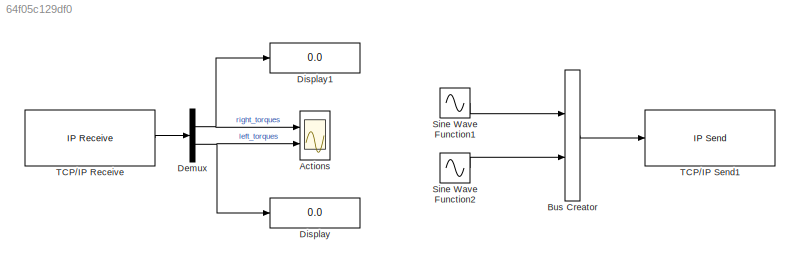
MODEL slx_64f05c129df0
KIND model
CONFIG AbsTol = auto
CONFIG EnableMultiTasking = off
CONFIG FixedStep = auto
CONFIG MaxStep = auto
CONFIG MinStep = auto
CONFIG RelTol = 1e-3
CONFIG SampleTimeConstraint = Unconstrained
CONFIG SolverName = VariableStepAuto
CONFIG StartTime = 0.0
CONFIG StopTime = 10.0
BLOCK [Scope] Actions
  Floating = off
  NumInputPorts = 2
  Ports = [2]
  ScopeSpecificationString = Simulink.scopes.TimeScopeBlockCfg('CurrentConfiguration', extmgr.ConfigurationSet(extmgr.Configuration('Core','General UI',true),extmgr.Configuration('Core','Source UI',true),extmgr.Configuration('Sources','WiredSimulink',true,'DataLoggingVariableName','ScopeData1'),extmgr.Configuration('Visuals','Time Domain',true,'SerializedDisplays',{struct('MinYLimReal','-3.75','MaxYLimReal','3.75','YLabelReal...<+2095ch>
BLOCK [BusCreator] Bus Creator
  DisplayOption = bar
  InheritFromInputs = on
  Inputs = 2
  Ports = [2, 1]
BLOCK [Demux] Demux
  Outputs = 2
  Ports = [1, 2]
BLOCK [Display] Display
  Decimation = 1
  Ports = [1]
BLOCK [Display] Display1
  Decimation = 1
  Ports = [1]
BLOCK [Sin] Sine Wave Function1
  Amplitude = 10
  Ports = [0, 1]
  SampleTime = 0
BLOCK [Sin] Sine Wave Function2
  Amplitude = 10
  Phase = 90
  Ports = [0, 1]
  SampleTime = 0
BLOCK [Reference] TCP//IP Receive  REF=instrumentlib/TCP//IP Receive
  Ports = [0, 1]
  SourceBlock = instrumentlib/TCP//IP Receive
  SourceProductBaseCode = IC
  SourceType = instrument.system.TCPIPReceive
BLOCK [Reference] TCP//IP Send1  REF=instrumentlib/TCP//IP Send
  Ports = [1]
  SourceBlock = instrumentlib/TCP//IP Send
  SourceProductBaseCode = IC
  SourceType = instrument.system.TCPIPSend
LINE Bus Creator:1 -> TCP//IP Send1:1
NET Demux:1 -> Actions:1, Display1:1
NET Demux:2 -> Actions:2, Display:1
LINE Sine Wave Function1:1 -> Bus Creator:1
LINE Sine Wave Function2:1 -> Bus Creator:2
LINE TCP//IP Receive:1 -> Demux:1
note: NET lines group one-source signal fan-out (src -> all destinations, sorted); 1:1 wires keep LINE
